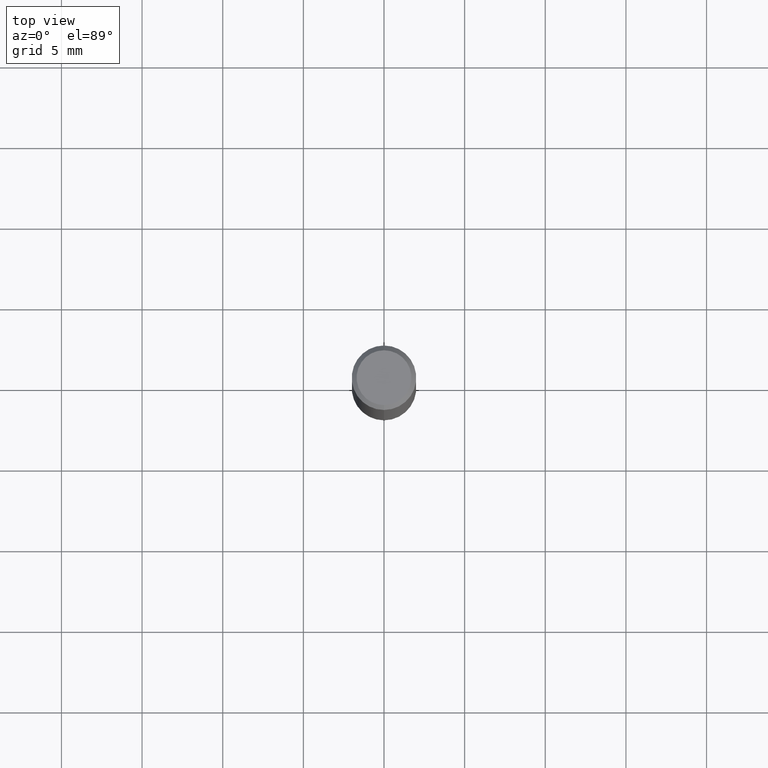
[diagram: clean part render]
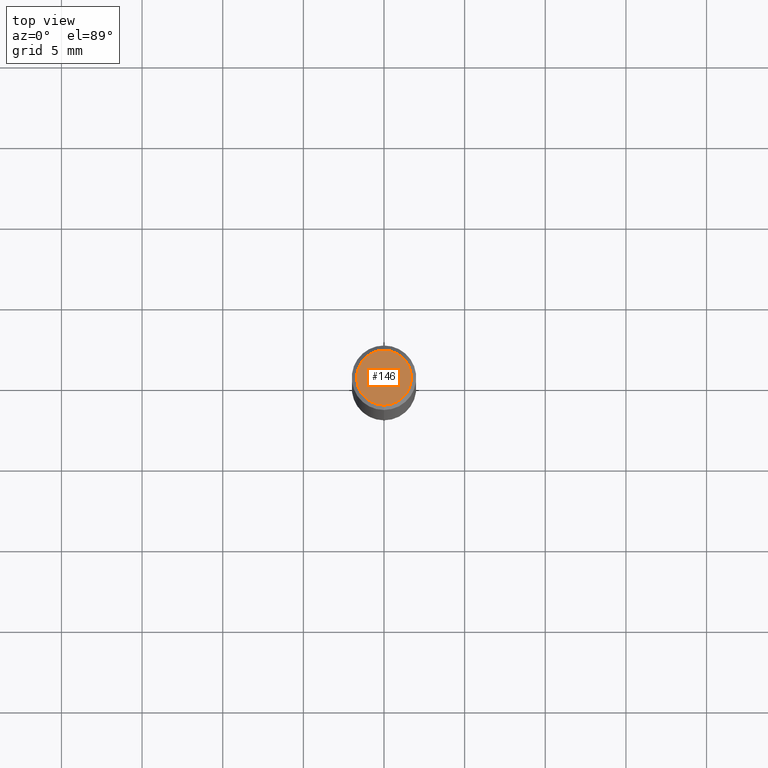
[diagram: same view with one face highlighted and labeled with its STEP entity id]
A machine part, top view. The second image highlights one B-rep face of the part: STEP entity #146.
In plain terms, the highlighted planar face has unit normal (-0, 0, 1).
Its self-contained STEP definition (entity closure, byte-faithful):
#146=ADVANCED_FACE('',(#288),#289,.T.);
#148=EDGE_CURVE('',#168,#180,#291,.T.);
#156=EDGE_CURVE('',#180,#168,#301,.T.);
#168=VERTEX_POINT('',#314);
#180=VERTEX_POINT('',#327);
#288=FACE_OUTER_BOUND('',#451,.T.);
#289=PLANE('',#452);
#291=CIRCLE('',#455,1.7);
#301=CIRCLE('',#467,1.7);
#314=CARTESIAN_POINT('',(0.0,1.7,0.0));
#327=CARTESIAN_POINT('',(2.08183080149804E-016,-1.7,0.0));
#451=EDGE_LOOP('',(#612,#613));
#452=AXIS2_PLACEMENT_3D('',#614,#615,#616);
#455=AXIS2_PLACEMENT_3D('',#617,#618,#619);
#467=AXIS2_PLACEMENT_3D('',#631,#632,#633);
#612=ORIENTED_EDGE('',*,*,#148,.F.);
#613=ORIENTED_EDGE('',*,*,#156,.F.);
#614=CARTESIAN_POINT('',(0.0,0.85,0.0));
#615=DIRECTION('',(-0.0,0.0,1.0));
#616=DIRECTION('',(0.0,-1.0,0.0));
#617=CARTESIAN_POINT('',(0.0,0.0,0.0));
#618=DIRECTION('',(0.0,0.0,-1.0));
#619=DIRECTION('',(0.0,1.0,0.0));
#631=CARTESIAN_POINT('',(0.0,0.0,0.0));
#632=DIRECTION('',(0.0,0.0,-1.0));
#633=DIRECTION('',(0.0,1.0,0.0));